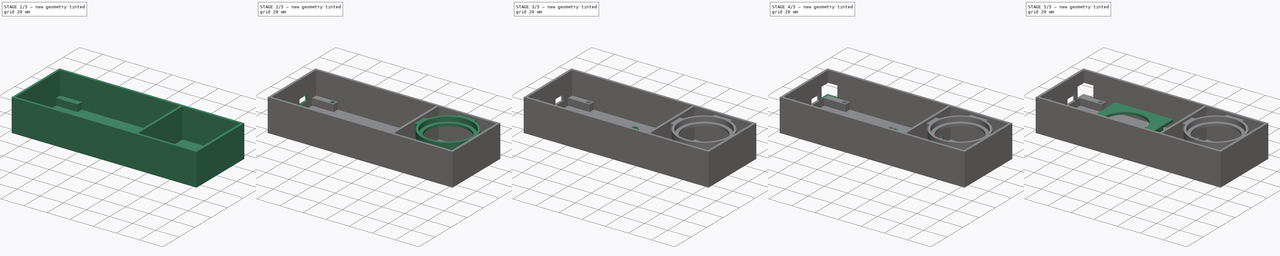
[diagram: build sequence overview — one tinted view per stage of 5, left to right]
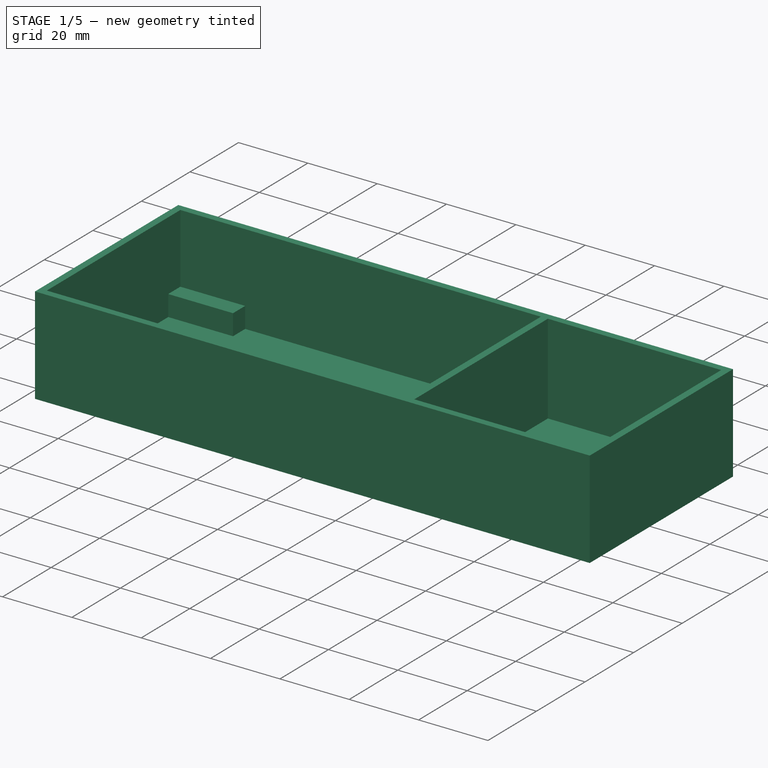
[diagram: stage 1 of 5 — iso view after this stage's code; geometry added in this stage tinted green]
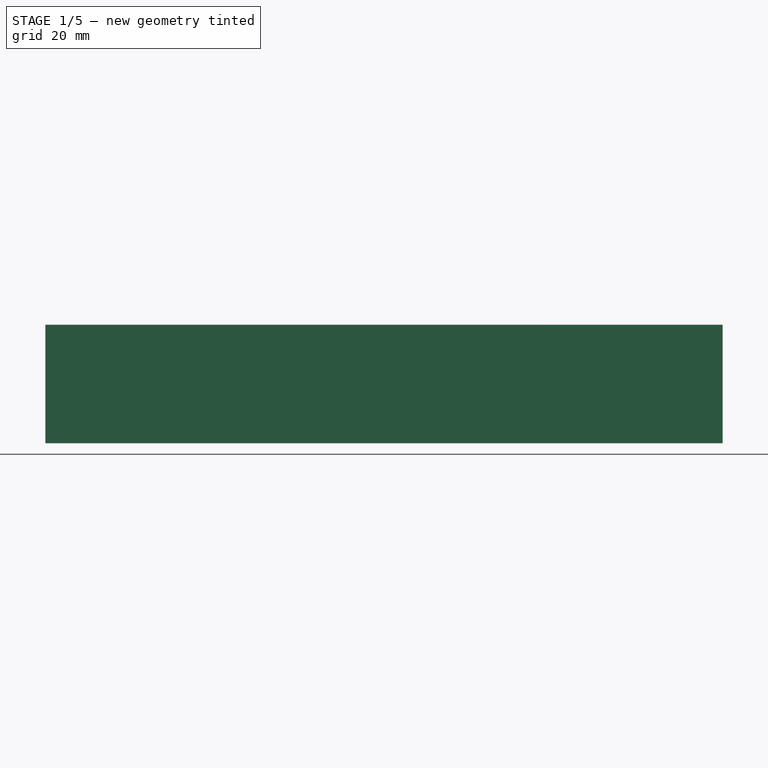
[diagram: stage 1 of 5 — front view after this stage's code; geometry added in this stage tinted green]
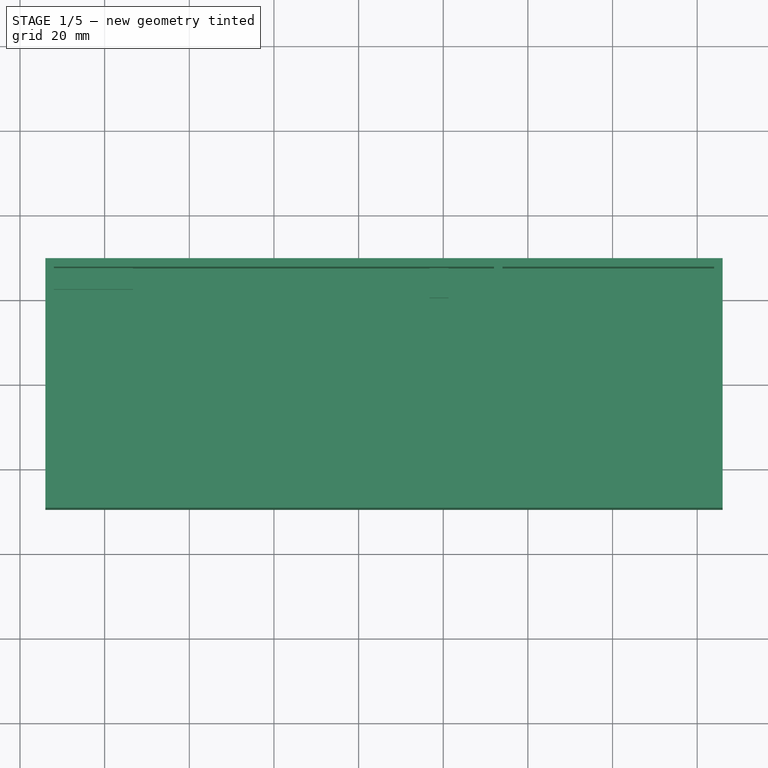
[diagram: stage 1 of 5 — top view after this stage's code; geometry added in this stage tinted green]
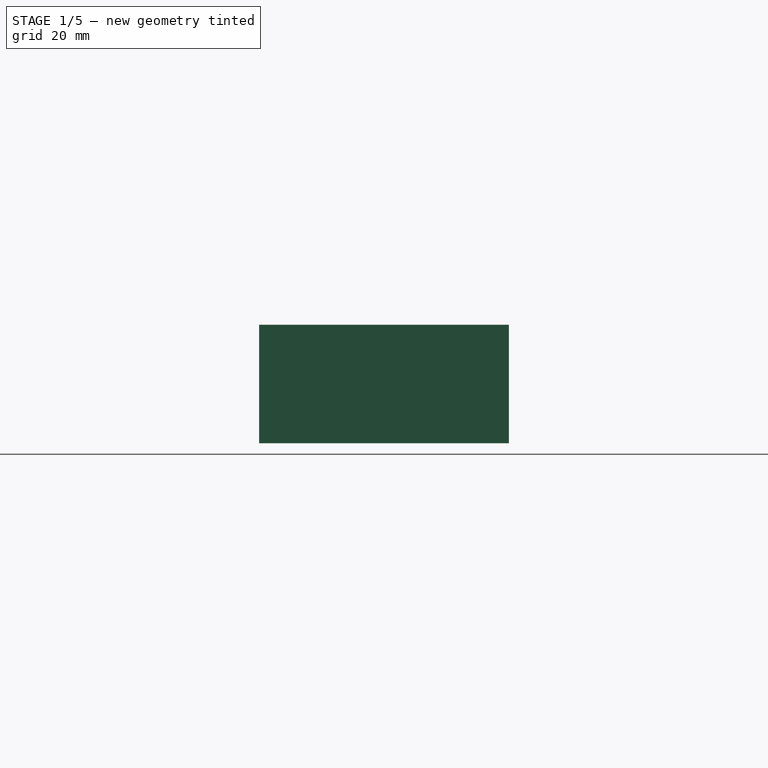
[diagram: stage 1 of 5 — right view after this stage's code; geometry added in this stage tinted green]
FCSTD DOCUMENT  (FreeCAD 0.19R24291 (Git))
Label: Holderv3
License: All rights reserved
LicenseURL: http://en.wikipedia.org/wiki/All_rights_reserved
objects: Sketcher::SketchObject×23, PartDesign::Pad×12, PartDesign::Pocket×11, PartDesign::Body×2, PartDesign::Plane×1, PartDesign::Line×1, PartDesign::Mirrored×1
note: 74 computed .brp shape members not serialized (recipe doc carries the construction recipe); baked Part::Feature solids carry a one-line shape summary decoded from their .brp

FEATURE [Sketcher::SketchObject] Sketch
  FullyConstrained = true
  MapMode = 5
  Support = -> [XY_Plane]
  sketch-geometry (8):
    g0: LineSegment StartX=-52 StartY=27.5 StartZ=0 EndX=52 EndY=27.5 EndZ=0
    g1: LineSegment StartX=52 StartY=27.5 StartZ=0 EndX=52 EndY=-27.5 EndZ=0
    g2: LineSegment StartX=52 StartY=-27.5 StartZ=0 EndX=-52 EndY=-27.5 EndZ=0
    g3: LineSegment StartX=-52 StartY=-27.5 StartZ=0 EndX=-52 EndY=27.5 EndZ=0
    g4: LineSegment StartX=-54 StartY=29.5 StartZ=0 EndX=54 EndY=29.5 EndZ=0
    g5: LineSegment StartX=54 StartY=29.5 StartZ=0 EndX=54 EndY=-29.5 EndZ=0
    g6: LineSegment StartX=54 StartY=-29.5 StartZ=0 EndX=-54 EndY=-29.5 EndZ=0
    g7: LineSegment StartX=-54 StartY=-29.5 StartZ=0 EndX=-54 EndY=29.5 EndZ=0
  constraints (22):
    c: Coincident(g0,g1)
    c: Coincident(g1,g2)
    c: Coincident(g2,g3)
    c: Coincident(g3,g0)
    c: Horizontal(g2)
    c: Vertical(g3)
    c: Symmetric(g0,g0,g-2)
    c: Symmetric(g1,g0,g-1)
    c: DistanceX(g0,g0) = 104
    c: DistanceY(g1,g1) = 55
    c: Coincident(g4,g5)
    c: Coincident(g5,g6)
    c: Coincident(g6,g7)
    c: Coincident(g7,g4)
    c: Horizontal(g4)
    c: Horizontal(g6)
    c: Vertical(g5)
    c: Vertical(g7)
    c: DistanceX(g0,g4) = 2
    c: DistanceX(g4,g0) = 2
    c: DistanceY(g0,g4) = 2
    c: DistanceY(g5,g1) = 2
FEATURE [PartDesign::Pad] Pad
  Direction = (1,1,1)
  Length = 20
  Length2 = 100
  Profile = -> Sketch
  Type = 0
FEATURE [Sketcher::SketchObject] Sketch001
  ExternalGeometry = -> [Pad]
  FullyConstrained = true
  MapMode = 5
  Placement = pos=(0,0,0) rot=(1,0,0;3.14159rad)
  Support = -> [Pad]
  sketch-geometry (18):
    g0: LineSegment StartX=43 StartY=27.5 StartZ=0 EndX=43 EndY=21.5 EndZ=0
    g1: LineSegment StartX=43 StartY=21.5 StartZ=0 EndX=52 EndY=21.5 EndZ=0
    g2: LineSegment StartX=36.75 StartY=-27.5 StartZ=0 EndX=36.75 EndY=-20.5 EndZ=0
    g3: LineSegment StartX=36.75 StartY=-20.5 StartZ=0 EndX=41.25 EndY=-20.5 EndZ=0
    g4: LineSegment StartX=41.25 StartY=-20.5 StartZ=0 EndX=41.25 EndY=-27.5 EndZ=0
    g5: LineSegment StartX=-47 StartY=27.5 StartZ=0 EndX=-47 EndY=22.5 EndZ=0
    g6: LineSegment StartX=-47 StartY=22.5 StartZ=0 EndX=-52 EndY=22.5 EndZ=0
    g7: LineSegment StartX=-52 StartY=-22.5 StartZ=0 EndX=-33.3 EndY=-22.5 EndZ=0
    g8: LineSegment StartX=-33.3 StartY=-22.5 StartZ=0 EndX=-33.3 EndY=-27.5 EndZ=0
    g9: LineSegment StartX=-54 StartY=29.5 StartZ=0 EndX=54 EndY=29.5 EndZ=0
    g10: LineSegment StartX=54 StartY=29.5 StartZ=0 EndX=54 EndY=-29.5 EndZ=0
    g11: LineSegment StartX=54 StartY=-29.5 StartZ=0 EndX=-54 EndY=-29.5 EndZ=0
    g12: LineSegment StartX=-54 StartY=-29.5 StartZ=0 EndX=-54 EndY=29.5 EndZ=0
    g13: LineSegment StartX=-47 StartY=27.5 StartZ=0 EndX=43 EndY=27.5 EndZ=0
    g14: LineSegment StartX=-52 StartY=22.5 StartZ=0 EndX=-52 EndY=-22.5 EndZ=0
    g15: LineSegment StartX=-33.3 StartY=-27.5 StartZ=0 EndX=36.75 EndY=-27.5 EndZ=0
    g16: LineSegment StartX=41.25 StartY=-27.5 StartZ=0 EndX=52 EndY=-27.5 EndZ=0
    g17: LineSegment StartX=52 StartY=-27.5 StartZ=0 EndX=52 EndY=21.5 EndZ=0
  constraints (51):
    c: Coincident(g0,g1)
    c: Horizontal(g1)
    c: Vertical(g0)
    c: DistanceX(g1,g1) = 9
    c: PointOnObject(g1,g-3)
    c: DistanceY(g0,g0) = 6
    c: PointOnObject(g0,g-4)
    c: PointOnObject(g2,g-5)
    c: Vertical(g2)
    c: Coincident(g2,g3)
    c: Horizontal(g3)
    c: Coincident(g3,g4)
    c: PointOnObject(g4,g-5)
    c: Vertical(g4)
    c: DistanceX(g3,g3) = 4.5
    c: DistanceX(g4,g-5) = 10.75
    c: DistanceY(g2,g2) = 7
    c: PointOnObject(g5,g-4)
    c: Vertical(g5)
    c: Coincident(g5,g6)
    c: PointOnObject(g6,g-6)
    c: Horizontal(g6)
    c: PointOnObject(g7,g-6)
    c: Horizontal(g7)
    c: Coincident(g7,g8)
    c: PointOnObject(g8,g-5)
    c: Vertical(g8)
    c: DistanceY(g5,g5) = 5
    c: DistanceX(g6,g6) = 5
    c: DistanceY(g8,g8) = 5
    c: DistanceX(g7,g7) = 18.7
    c: Coincident(g9,g10)
    c: Coincident(g10,g11)
    c: Coincident(g11,g12)
    c: Coincident(g12,g9)
    c: Horizontal(g9)
    c: Horizontal(g11)
    c: Vertical(g10)
    c: Vertical(g12)
    c: Coincident(g9,g-7)
    c: Coincident(g10,g-8)
    c: Coincident(g13,g5)
    c: Coincident(g13,g0)
    c: Coincident(g14,g6)
    c: Coincident(g14,g7)
    c: Coincident(g15,g8)
    c: Coincident(g15,g2)
    c: Coincident(g16,g4)
    c: Coincident(g16,g-5)
    c: Coincident(g17,g16)
    c: Coincident(g17,g1)
FEATURE [PartDesign::Pad] Pad001
  BaseFeature = -> Pad
  Direction = (1,1,1)
  Length = 6
  Length2 = 100
  Profile = -> Sketch001
  Type = 0
FEATURE [Sketcher::SketchObject] Sketch002
  ExternalGeometry = -> [Pad001]
  FullyConstrained = true
  MapMode = 5
  Placement = pos=(0,0,-6) rot=(1,0,0;3.14159rad)
  Support = -> [Pad001]
  sketch-geometry (4):
    g0: LineSegment StartX=-54 StartY=29.5 StartZ=0 EndX=54 EndY=29.5 EndZ=0
    g1: LineSegment StartX=54 StartY=29.5 StartZ=0 EndX=54 EndY=-29.5 EndZ=0
    g2: LineSegment StartX=54 StartY=-29.5 StartZ=0 EndX=-54 EndY=-29.5 EndZ=0
    g3: LineSegment StartX=-54 StartY=-29.5 StartZ=0 EndX=-54 EndY=29.5 EndZ=0
  constraints (10):
    c: Coincident(g0,g1)
    c: Coincident(g1,g2)
    c: Coincident(g2,g3)
    c: Coincident(g3,g0)
    c: Horizontal(g0)
    c: Horizontal(g2)
    c: Vertical(g1)
    c: Vertical(g3)
    c: Coincident(g0,g-3)
    c: Coincident(g1,g-4)
FEATURE [PartDesign::Pad] Pad002
  BaseFeature = -> Pad001
  Direction = (1,1,1)
  Length = 2
  Length2 = 100
  Profile = -> Sketch002
  Type = 0
FEATURE [Sketcher::SketchObject] Sketch004
  ExternalGeometry = -> [Pad002]
  FullyConstrained = true
  MapMode = 5
  Placement = pos=(54,0,0) rot=(0.57735,0.57735,0.57735;2.0944rad)
  Support = -> [Pad002]
  sketch-geometry (8):
    g0: LineSegment StartX=-29.5 StartY=20 StartZ=0 EndX=-27.5 EndY=20 EndZ=0
    g1: LineSegment StartX=-27.5 StartY=20 StartZ=0 EndX=-27.5 EndY=-6 EndZ=0
    g2: LineSegment StartX=-27.5 StartY=-6 StartZ=0 EndX=27.5 EndY=-6 EndZ=0
    g3: LineSegment StartX=29.5 StartY=20 StartZ=0 EndX=27.5 EndY=20 EndZ=0
    g4: LineSegment StartX=27.5 StartY=20 StartZ=0 EndX=27.5 EndY=-6 EndZ=0
    g5: LineSegment StartX=29.5 StartY=20 StartZ=0 EndX=29.5 EndY=-8 EndZ=0
    g6: LineSegment StartX=29.5 StartY=-8 StartZ=0 EndX=-29.5 EndY=-8 EndZ=0
    g7: LineSegment StartX=-29.5 StartY=-8 StartZ=0 EndX=-29.5 EndY=20 EndZ=0
  constraints (20):
    c: Coincident(g-3,g0)
    c: Horizontal(g0)
    c: Coincident(g0,g1)
    c: Vertical(g1)
    c: Coincident(g1,g2)
    c: Horizontal(g2)
    c: Coincident(g-5,g3)
    c: Horizontal(g3)
    c: Coincident(g3,g4)
    c: Coincident(g4,g2)
    c: Vertical(g4)
    c: Coincident(g3,g5)
    c: Coincident(g5,g-4)
    c: Coincident(g5,g6)
    c: Coincident(g6,g-4)
    c: Coincident(g6,g7)
    c: Coincident(g7,g0)
    c: DistanceX(g0,g0) = 2
    c: DistanceX(g3,g3) = 2
    c: DistanceY(g6,g1) = 2
FEATURE [PartDesign::Pad] Pad003
  BaseFeature = -> Pad002
  Direction = (1,1,1)
  Length = 50
  Length2 = 100
  Profile = -> Sketch004
  Type = 0
FEATURE [Sketcher::SketchObject] Sketch005
  ExternalGeometry = -> [Pad003]
  FullyConstrained = true
  MapMode = 5
  Placement = pos=(104,0,0) rot=(0.57735,0.57735,0.57735;2.0944rad)
  Support = -> [Pad003]
  sketch-geometry (4):
    g0: LineSegment StartX=-29.5 StartY=20 StartZ=0 EndX=29.5 EndY=20 EndZ=0
    g1: LineSegment StartX=29.5 StartY=20 StartZ=0 EndX=29.5 EndY=-8 EndZ=0
    g2: LineSegment StartX=29.5 StartY=-8 StartZ=0 EndX=-29.5 EndY=-8 EndZ=0
    g3: LineSegment StartX=-29.5 StartY=-8 StartZ=0 EndX=-29.5 EndY=20 EndZ=0
  constraints (10):
    c: Coincident(g0,g1)
    c: Coincident(g1,g2)
    c: Coincident(g2,g3)
    c: Coincident(g3,g0)
    c: Horizontal(g0)
    c: Horizontal(g2)
    c: Vertical(g1)
    c: Vertical(g3)
    c: Coincident(g0,g-3)
    c: Coincident(g1,g-4)
FEATURE [PartDesign::Pad] Pad004
  BaseFeature = -> Pad003
  Direction = (1,1,1)
  Length = 2
  Length2 = 100
  Profile = -> Sketch005
  Type = 0
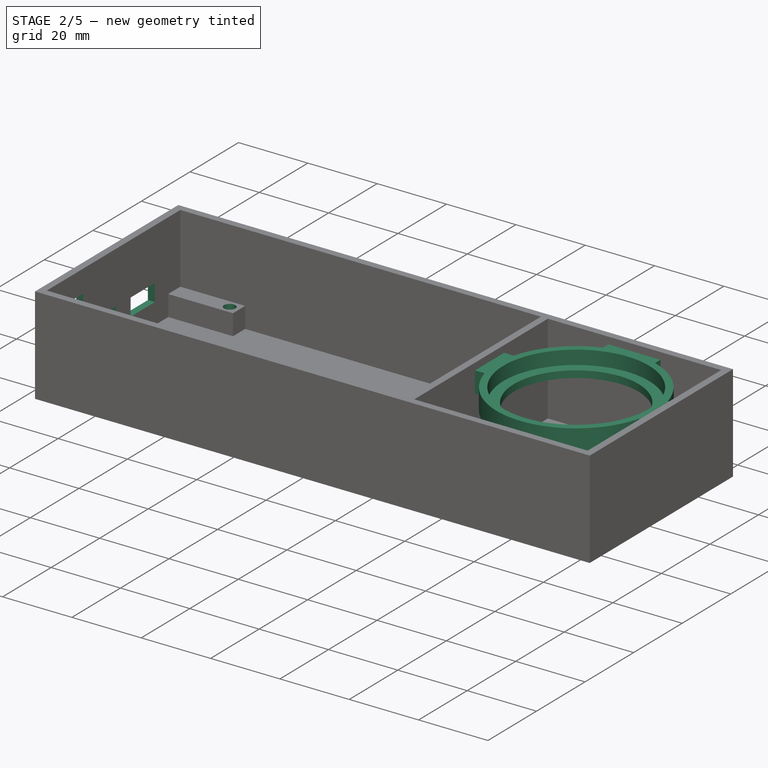
[diagram: stage 2 of 5 — iso view after this stage's code; geometry added in this stage tinted green]
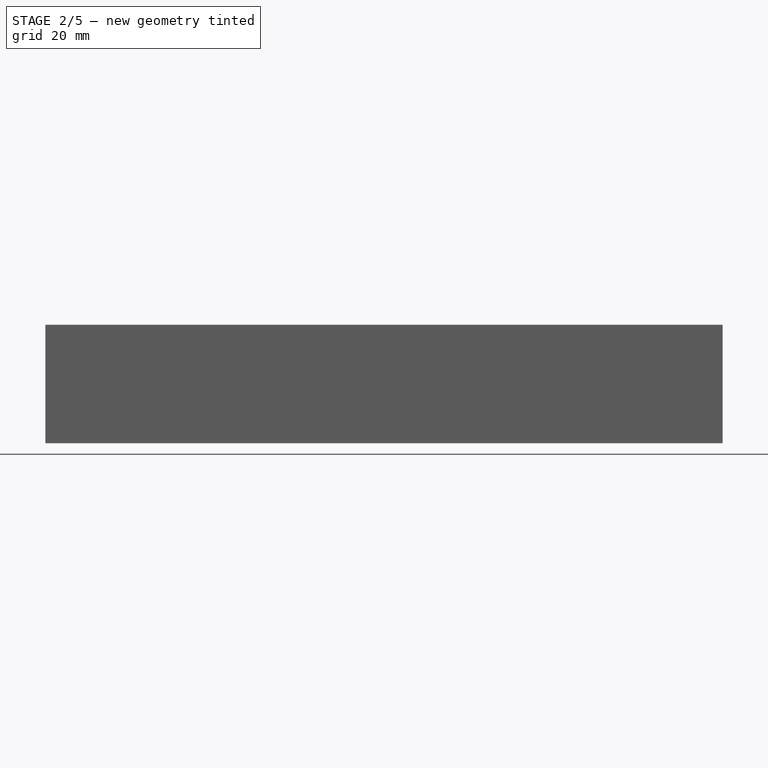
[diagram: stage 2 of 5 — front view after this stage's code; geometry added in this stage tinted green]
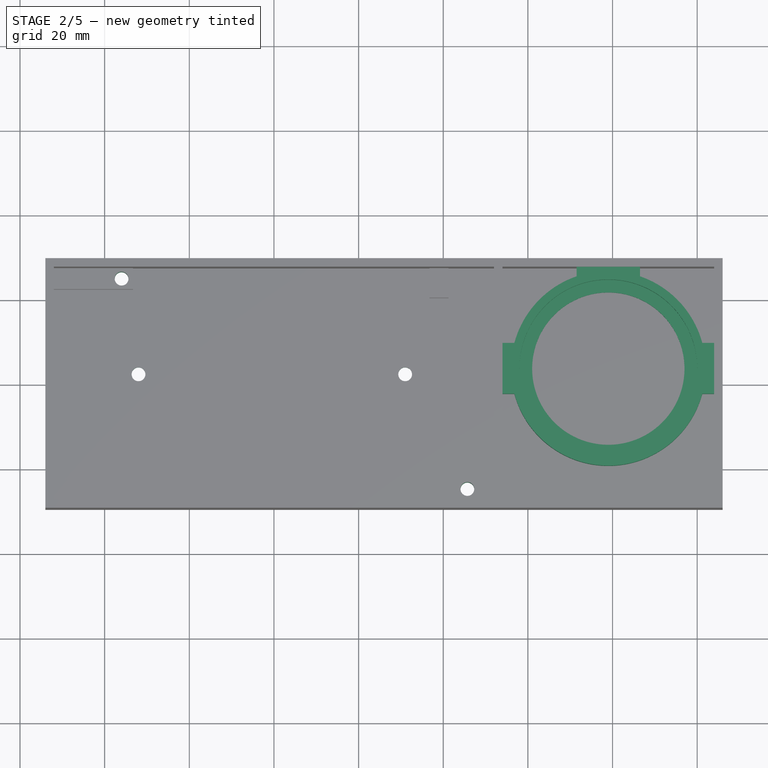
[diagram: stage 2 of 5 — top view after this stage's code; geometry added in this stage tinted green]
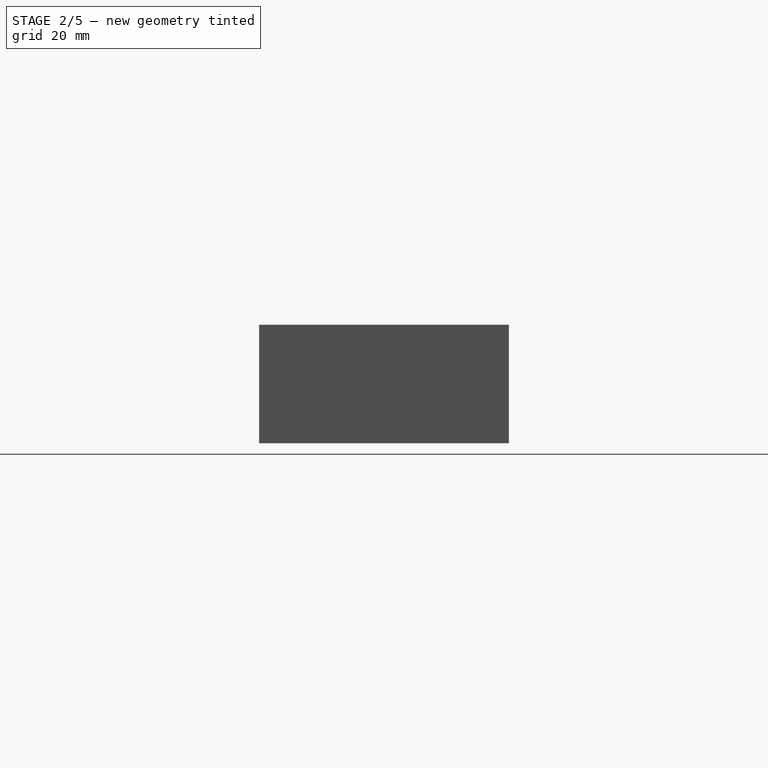
[diagram: stage 2 of 5 — right view after this stage's code; geometry added in this stage tinted green]
FEATURE [PartDesign::Plane] DatumPlane
  AttachmentOffset = pos=(0,0,18) rot=(0,0,1;0rad)
  Length = 179.432
  MapMode = 5
  Placement = pos=(0,0,12) rot=(0,0,1;0rad)
  ResizeMode = 0
  Support = -> [Pad004]
  Width = 78.4319
FEATURE [Sketcher::SketchObject] Sketch010
  ExternalGeometry = -> [Pad004]
  FullyConstrained = true
  MapMode = 5
  Placement = pos=(0,0,12) rot=(0,0,1;0rad)
  Support = -> [DatumPlane]
  sketch-geometry (18):
    g0: LineSegment StartX=79 StartY=27.5 StartZ=0 EndX=79 EndY=3.5 EndZ=0
    g1: ArcOfCircle CenterX=79 CenterY=3.5 CenterZ=0 NormalX=0 NormalY=0 NormalZ=1 AngleXU=0 Radius=23 StartAngle=3.40552 EndAngle=6.01926
    g2: Circle CenterX=79 CenterY=3.5 CenterZ=0 NormalX=0 NormalY=0 NormalZ=1 AngleXU=0 Radius=18
    g3: LineSegment StartX=56.7964 StartY=9.5 StartZ=0 EndX=54 EndY=9.5 EndZ=0
    g4: LineSegment StartX=54 StartY=9.5 StartZ=0 EndX=54 EndY=-2.5 EndZ=0
    g5: LineSegment StartX=54 StartY=-2.5 StartZ=0 EndX=56.7964 EndY=-2.5 EndZ=0
    g6: LineSegment StartX=79 StartY=3.5 StartZ=0 EndX=54 EndY=3.5 EndZ=0
    g7: LineSegment StartX=71.5 StartY=25.2428 StartZ=0 EndX=71.5 EndY=27.5 EndZ=0
    g8: LineSegment StartX=71.5 StartY=27.5 StartZ=0 EndX=86.5 EndY=27.5 EndZ=0
    g9: LineSegment StartX=86.5 StartY=27.5 StartZ=0 EndX=86.5 EndY=25.2428 EndZ=0
    g10: ArcOfCircle CenterX=79 CenterY=3.5 CenterZ=0 NormalX=0 NormalY=0 NormalZ=1 AngleXU=0 Radius=23 StartAngle=1.90296 EndAngle=2.87767
    g11: LineSegment StartX=79 StartY=3.5 StartZ=0 EndX=104 EndY=3.5 EndZ=0
    g12: LineSegment StartX=101.204 StartY=9.5 StartZ=0 EndX=104 EndY=9.5 EndZ=0
    g13: LineSegment StartX=104 StartY=9.5 StartZ=0 EndX=104 EndY=-2.5 EndZ=0
    g14: LineSegment StartX=104 StartY=-2.5 StartZ=0 EndX=101.204 EndY=-2.5 EndZ=0
    g15: ArcOfCircle CenterX=79 CenterY=3.5 CenterZ=0 NormalX=0 NormalY=0 NormalZ=1 AngleXU=0 Radius=23 StartAngle=0.263923 EndAngle=1.23864
    g16: LineSegment StartX=56.7964 StartY=9.5 StartZ=0 EndX=56.7964 EndY=-2.5 EndZ=0
    g17: LineSegment StartX=101.204 StartY=9.5 StartZ=0 EndX=101.204 EndY=-2.5 EndZ=0
  constraints (49):
    c: PointOnObject(g0,g-6)
    c: Symmetric(g-6,g-6,g0)
    c: Distance(g0) = 24
    c: Coincident(g1,g0)
    c: Diameter(g1) = 46
    c: Coincident(g2,g1)
    c: Diameter(g2) = 36
    c: PointOnObject(g3,g-5)
    c: Horizontal(g3)
    c: Coincident(g3,g4)
    c: PointOnObject(g4,g-5)
    c: Coincident(g4,g5)
    c: Horizontal(g5)
    c: Coincident(g6,g1)
    c: PointOnObject(g6,g4)
    c: Symmetric(g3,g4,g6)
    c: Coincident(g10,g3)
    c: Coincident(g1,g5)
    c: PointOnObject(g7,g1)
    c: PointOnObject(g7,g-6)
    c: Vertical(g7)
    c: Coincident(g7,g8)
    c: Coincident(g8,g9)
    c: Vertical(g9)
    c: Symmetric(g8,g7,g0)
    c: Equal(g1,g10)
    c: Coincident(g15,g9)
    c: Coincident(g1,g10)
    c: PointOnObject(g10,g7)
    c: DistanceX(g7,g15) = 15
    c: Coincident(g11,g1)
    c: PointOnObject(g11,g-4)
    c: Horizontal(g11)
    c: PointOnObject(g12,g-4)
    c: Horizontal(g12)
    c: Coincident(g12,g13)
    c: Coincident(g13,g14)
    c: Horizontal(g14)
    c: Equal(g1,g15)
    c: Coincident(g15,g12)
    c: Coincident(g1,g15)
    c: Coincident(g1,g14)
    c: Symmetric(g12,g13,g11)
    c: Coincident(g16,g3)
    c: Coincident(g16,g1)
    c: Coincident(g17,g12)
    c: Coincident(g17,g1)
    c: Equal(g17,g16)
    c: DistanceY(g1,g12) = 12
FEATURE [PartDesign::Pad] Pad005
  BaseFeature = -> Pad004
  Direction = (1,1,1)
  Length = 2
  Length2 = 100
  Profile = -> Sketch010
  Type = 0
FEATURE [Sketcher::SketchObject] Sketch011
  ExternalGeometry = -> [Pad005]
  FullyConstrained = true
  MapMode = 5
  Placement = pos=(0,0,14) rot=(0,0,1;0rad)
  Support = -> [Pad005]
  sketch-geometry (13):
    g0: LineSegment StartX=71.5 StartY=25.2428 StartZ=0 EndX=71.5 EndY=27.5 EndZ=0
    g1: LineSegment StartX=71.5 StartY=27.5 StartZ=0 EndX=86.5 EndY=27.5 EndZ=0
    g2: LineSegment StartX=86.5 StartY=27.5 StartZ=0 EndX=86.5 EndY=25.2428 EndZ=0
    g3: LineSegment StartX=56.7964 StartY=9.5 StartZ=0 EndX=54 EndY=9.5 EndZ=0
    g4: LineSegment StartX=54 StartY=9.5 StartZ=0 EndX=54 EndY=-2.5 EndZ=0
    g5: LineSegment StartX=54 StartY=-2.5 StartZ=0 EndX=56.7964 EndY=-2.5 EndZ=0
    g6: LineSegment StartX=101.204 StartY=9.5 StartZ=0 EndX=104 EndY=9.5 EndZ=0
    g7: LineSegment StartX=104 StartY=9.5 StartZ=0 EndX=104 EndY=-2.5 EndZ=0
    g8: LineSegment StartX=104 StartY=-2.5 StartZ=0 EndX=101.204 EndY=-2.5 EndZ=0
    g9: ArcOfCircle CenterX=79 CenterY=3.5 CenterZ=0 NormalX=0 NormalY=0 NormalZ=1 AngleXU=0 Radius=23 StartAngle=0.263923 EndAngle=1.23864
    g10: ArcOfCircle CenterX=79 CenterY=3.5 CenterZ=0 NormalX=0 NormalY=0 NormalZ=1 AngleXU=0 Radius=23 StartAngle=3.40552 EndAngle=6.01926
    g11: ArcOfCircle CenterX=79 CenterY=3.5 CenterZ=0 NormalX=0 NormalY=0 NormalZ=1 AngleXU=0 Radius=23 StartAngle=1.90296 EndAngle=2.87767
    g12: Circle CenterX=79 CenterY=3.5 CenterZ=0 NormalX=0 NormalY=0 NormalZ=1 AngleXU=0 Radius=21
  constraints (29):
    c: Coincident(g-9,g0)
    c: Coincident(g0,g-9)
    c: Coincident(g0,g1)
    c: Coincident(g1,g-8)
    c: Coincident(g1,g2)
    c: Coincident(g2,g-8)
    c: Coincident(g-10,g3)
    c: Coincident(g3,g-10)
    c: Coincident(g3,g4)
    c: Coincident(g4,g-11)
    c: Coincident(g4,g5)
    c: Coincident(g5,g-11)
    c: Coincident(g-6,g6)
    c: Coincident(g6,g-6)
    c: Coincident(g6,g7)
    c: Coincident(g7,g-7)
    c: Coincident(g7,g8)
    c: Coincident(g8,g-7)
    c: Coincident(g9,g-12)
    c: Coincident(g9,g2)
    c: Coincident(g9,g6)
    c: Coincident(g10,g9)
    c: Coincident(g10,g8)
    c: Coincident(g10,g5)
    c: Coincident(g11,g9)
    c: Coincident(g11,g3)
    c: Coincident(g11,g0)
    c: Coincident(g12,g9)
    c: Diameter(g12) = 42
FEATURE [PartDesign::Pad] Pad006
  BaseFeature = -> Pad005
  Direction = (1,1,1)
  Length = 4
  Length2 = 100
  Profile = -> Sketch011
  Type = 0
FEATURE [PartDesign::Body] Body001  label="Speaker cover"
  Group = -> [Sketch017,Pad008,Sketch018,Pad009,Mirrored,Sketch019,Pocket006]
  Origin = -> Origin001
  Tip = -> Pocket006
FEATURE [PartDesign::Pocket] Pocket007
  BaseFeature = -> Pad006
  Length = 0
  Length2 = 100
  Profile = -> Sketch014
  Type = 3
  UpToFace = -> Pad006 [Face23]
FEATURE [Sketcher::SketchObject] Sketch022
  ExternalGeometry = -> [Pad006]
  FullyConstrained = true
  MapMode = 5
  Placement = pos=(-54,0,0) rot=(0.57735,-0.57735,-0.57735;2.0944rad)
  Support = -> [Pad006]
  sketch-geometry (12):
    g0: LineSegment StartX=12.5 StartY=13.5 StartZ=0 EndX=23.5 EndY=13.5 EndZ=0
    g1: LineSegment StartX=23.5 StartY=13.5 StartZ=0 EndX=23.5 EndY=0 EndZ=0
    g2: LineSegment StartX=23.5 StartY=0 StartZ=0 EndX=12.5 EndY=0 EndZ=0
    g3: LineSegment StartX=12.5 StartY=0 StartZ=0 EndX=12.5 EndY=13.5 EndZ=0
    g4: LineSegment StartX=-17 StartY=5 StartZ=0 EndX=-7 EndY=5 EndZ=0
    g5: LineSegment StartX=-7 StartY=5 StartZ=0 EndX=-7 EndY=0 EndZ=0
    g6: LineSegment StartX=-7 StartY=0 StartZ=0 EndX=-17 EndY=0 EndZ=0
    g7: LineSegment StartX=-17 StartY=0 StartZ=0 EndX=-17 EndY=5 EndZ=0
    g8: LineSegment StartX=-1 StartY=5 StartZ=0 EndX=9 EndY=5 EndZ=0
    g9: LineSegment StartX=9 StartY=5 StartZ=0 EndX=9 EndY=0 EndZ=0
    g10: LineSegment StartX=9 StartY=0 StartZ=0 EndX=-1 EndY=0 EndZ=0
    g11: LineSegment StartX=-1 StartY=0 StartZ=0 EndX=-1 EndY=5 EndZ=0
  constraints (36):
    c: Coincident(g0,g1)
    c: Coincident(g1,g2)
    c: Coincident(g2,g3)
    c: Coincident(g3,g0)
    c: Horizontal(g0)
    c: Horizontal(g2)
    c: Vertical(g1)
    c: Vertical(g3)
    c: Coincident(g4,g5)
    c: Coincident(g5,g6)
    c: Coincident(g6,g7)
    c: Coincident(g7,g4)
    c: Horizontal(g4)
    c: Horizontal(g6)
    c: Vertical(g5)
    c: Vertical(g7)
    c: Coincident(g8,g9)
    c: Coincident(g9,g10)
    c: Coincident(g10,g11)
    c: Coincident(g11,g8)
    c: Horizontal(g8)
    c: Horizontal(g10)
    c: Vertical(g9)
    c: Vertical(g11)
    c: Horizontal(g5,g10)
    c: Horizontal(g9,g2)
    c: Horizontal(g1,g-4)
    c: Equal(g5,g11)
    c: DistanceX(g-3,g4) = 22.5
    c: Equal(g4,g8)
    c: DistanceX(g4,g4) = 10
    c: DistanceX(g4,g8) = 26
    c: DistanceY(g7,g7) = 5
    c: DistanceX(g0,g0) = 11
    c: DistanceX(g0,g-4) = 6
    c: DistanceY(g3,g3) = 13.5
FEATURE [Sketcher::SketchObject] Sketch023
  ExternalGeometry = -> [Pocket007]
  FullyConstrained = true
  MapMode = 5
  Placement = pos=(0,0,-6) rot=(0,0,1;0rad)
  Support = -> [Pocket007]
  sketch-geometry (2):
    g0: Circle CenterX=-32 CenterY=2.5 CenterZ=0 NormalX=0 NormalY=0 NormalZ=1 AngleXU=0 Radius=1.625
    g1: Circle CenterX=31 CenterY=2.5 CenterZ=0 NormalX=0 NormalY=0 NormalZ=1 AngleXU=0 Radius=1.625
  constraints (6):
    c: Equal(g0,g1)
    c: Horizontal(g0,g1)
    c: DistanceX(g0,g1) = 63
    c: DistanceY(g1,g-3) = 25
    c: DistanceX(g1,g-3) = 21
    c: Diameter(g1) = 3.25
FEATURE [PartDesign::Pocket] Pocket
  BaseFeature = -> Pocket007
  Length = 0
  Length2 = 100
  Profile = -> Sketch022
  Type = 3
  UpToFace = -> Pocket007 [Face14]
FEATURE [PartDesign::Pocket] Pocket008
  BaseFeature = -> Pocket
  Length = 0
  Length2 = 100
  Profile = -> Sketch023
  Type = 3
  UpToFace = -> Pocket [Face35]
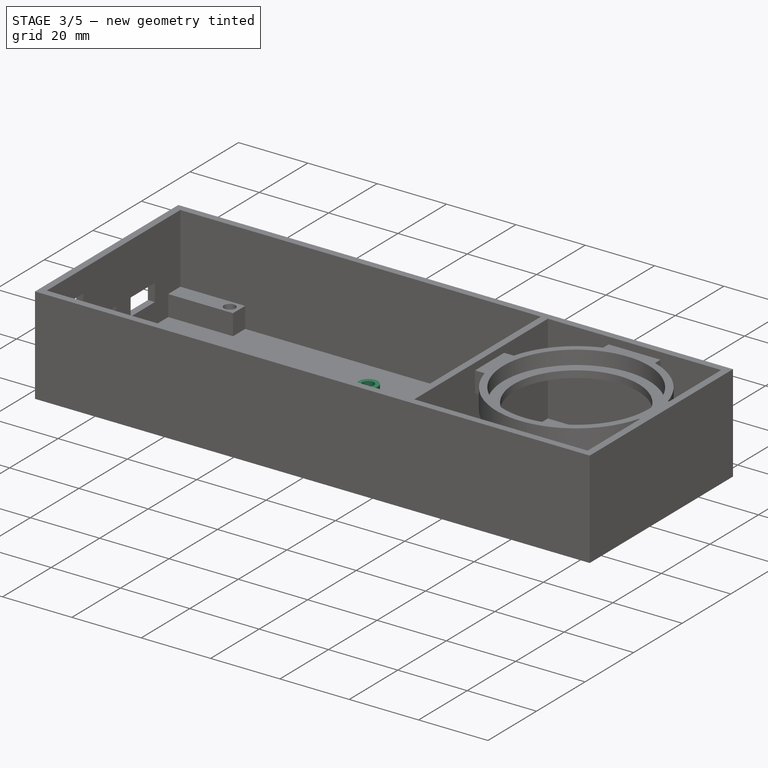
[diagram: stage 3 of 5 — iso view after this stage's code; geometry added in this stage tinted green]
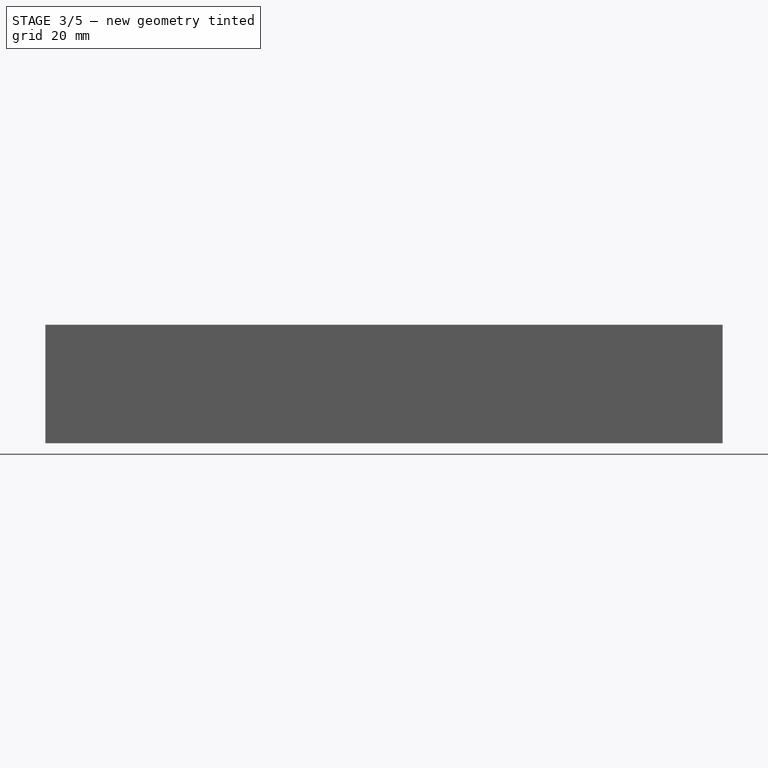
[diagram: stage 3 of 5 — front view after this stage's code; geometry added in this stage tinted green]
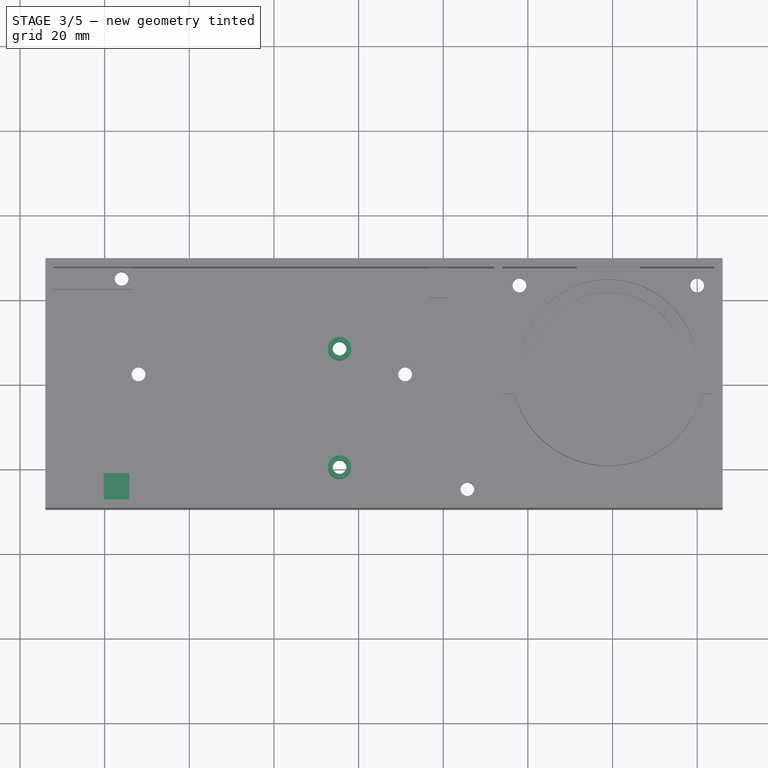
[diagram: stage 3 of 5 — top view after this stage's code; geometry added in this stage tinted green]
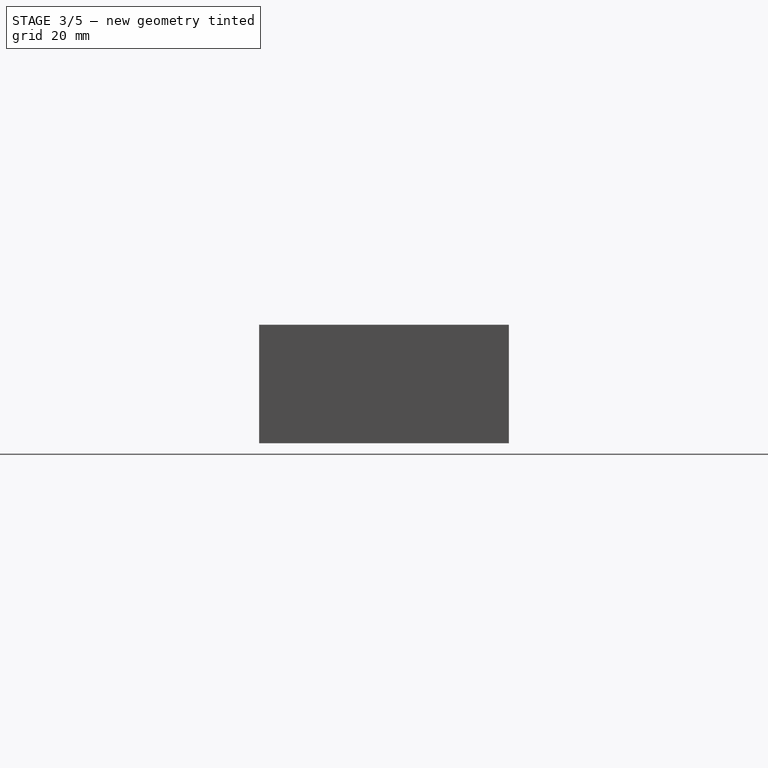
[diagram: stage 3 of 5 — right view after this stage's code; geometry added in this stage tinted green]
FEATURE [Sketcher::SketchObject] Sketch024
  ExternalGeometry = -> [Pocket008]
  FullyConstrained = true
  MapMode = 5
  Placement = pos=(0,0,-6) rot=(0,0,1;0rad)
  Support = -> [Pocket008]
  sketch-geometry (2):
    g0: Circle CenterX=15.5 CenterY=8.5 CenterZ=0 NormalX=0 NormalY=0 NormalZ=1 AngleXU=0 Radius=2.75
    g1: Circle CenterX=15.5 CenterY=-19.5 CenterZ=0 NormalX=0 NormalY=0 NormalZ=1 AngleXU=0 Radius=2.75
  constraints (6):
    c: Vertical(g1,g0)
    c: Equal(g0,g1)
    c: DistanceX(g0,g-3) = 36.5
    c: DistanceY(g1,g0) = 28
    c: DistanceY(g0,g-3) = 19
    c: Diameter(g0) = 5.5
FEATURE [PartDesign::Pad] Pad010
  BaseFeature = -> Pocket008
  Direction = (1,1,1)
  Length = 10
  Length2 = 100
  Profile = -> Sketch024
  Type = 3
  UpToFace = -> Pocket008 [Face49]
FEATURE [Sketcher::SketchObject] Sketch025
  ExternalGeometry = -> [Pad010]
  FullyConstrained = true
  MapMode = 5
  Support = -> [Pad010]
  sketch-geometry (2):
    g0: Circle CenterX=15.5 CenterY=8.5 CenterZ=0 NormalX=0 NormalY=0 NormalZ=1 AngleXU=0 Radius=1.625
    g1: Circle CenterX=15.5 CenterY=-19.5 CenterZ=0 NormalX=0 NormalY=0 NormalZ=1 AngleXU=0 Radius=1.625
  constraints (4):
    c: Coincident(g0,g-3)
    c: Coincident(g1,g-4)
    c: Equal(g0,g1)
    c: Diameter(g0) = 3.25
FEATURE [PartDesign::Pocket] Pocket009
  BaseFeature = -> Pad010
  Length = 0
  Length2 = 100
  Profile = -> Sketch025
  Type = 3
  UpToFace = -> Pad010 [Face35]
FEATURE [Sketcher::SketchObject] Sketch026
  ExternalGeometry = -> [Pocket009]
  FullyConstrained = true
  MapMode = 5
  Placement = pos=(0,0,-6) rot=(0,0,1;0rad)
  Support = -> [Pocket009]
  sketch-geometry (2):
    g0: Circle CenterX=100 CenterY=23.5 CenterZ=0 NormalX=0 NormalY=0 NormalZ=1 AngleXU=0 Radius=1.625
    g1: Circle CenterX=58 CenterY=23.5 CenterZ=0 NormalX=0 NormalY=0 NormalZ=1 AngleXU=0 Radius=1.625
  constraints (6):
    c: Equal(g1,g0)
    c: Diameter(g1) = 3.25
    c: Horizontal(g1,g0)
    c: DistanceY(g0,g-3) = 4
    c: DistanceX(g0,g-3) = 4
    c: DistanceX(g-4,g1) = 4
FEATURE [PartDesign::Pocket] Pocket010
  BaseFeature = -> Pocket009
  Length = 0
  Length2 = 100
  Profile = -> Sketch026
  Type = 3
  UpToFace = -> Pocket009 [Face18]
FEATURE [Sketcher::SketchObject] Sketch027
  ExternalGeometry = -> [Pocket010]
  FullyConstrained = true
  MapMode = 5
  Placement = pos=(0,0,-6) rot=(0,0,1;0rad)
  Support = -> [Pocket010]
  sketch-geometry (4):
    g0: LineSegment StartX=-40.2 StartY=-27.5 StartZ=0 EndX=-34.2 EndY=-27.5 EndZ=0
    g1: LineSegment StartX=-34.2 StartY=-27.5 StartZ=0 EndX=-34.2 EndY=-21 EndZ=0
    g2: LineSegment StartX=-34.2 StartY=-21 StartZ=0 EndX=-40.2 EndY=-21 EndZ=0
    g3: LineSegment StartX=-40.2 StartY=-21 StartZ=0 EndX=-40.2 EndY=-27.5 EndZ=0
  constraints (12):
    c: Coincident(g0,g1)
    c: Coincident(g1,g2)
    c: Coincident(g2,g3)
    c: Coincident(g3,g0)
    c: Horizontal(g0)
    c: Horizontal(g2)
    c: Vertical(g1)
    c: Vertical(g3)
    c: PointOnObject(g0,g-4)
    c: DistanceX(g-3,g1) = 17.8
    c: DistanceX(g-3,g2) = 11.8
    c: DistanceY(g1,g1) = 6.5
FEATURE [PartDesign::Pad] Pad011
  BaseFeature = -> Pocket010
  Direction = (1,1,1)
  Length = 10
  Length2 = 100
  Profile = -> Sketch027
  Type = 3
  UpToFace = -> Pocket010 [Face50]
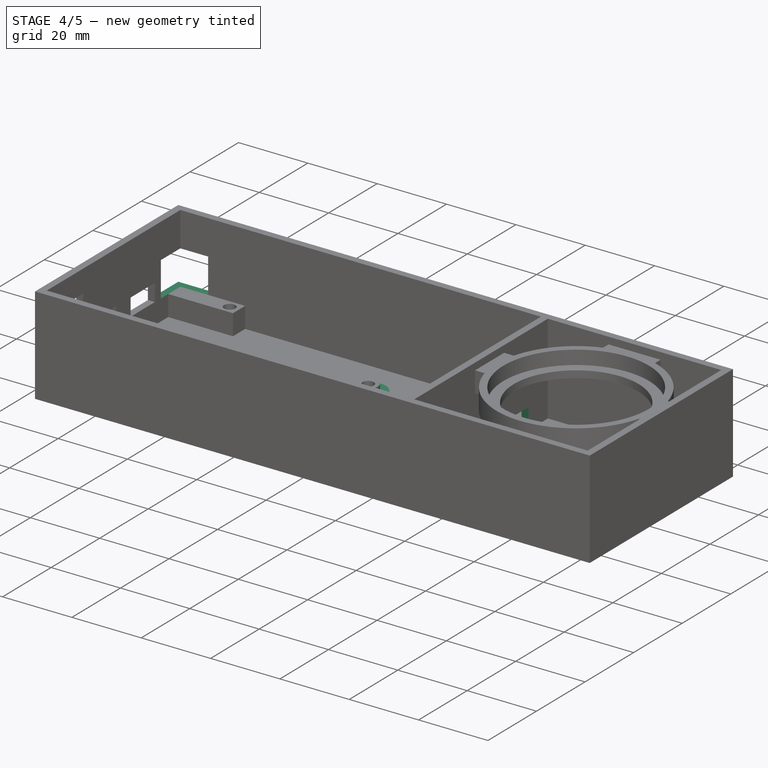
[diagram: stage 4 of 5 — iso view after this stage's code; geometry added in this stage tinted green]
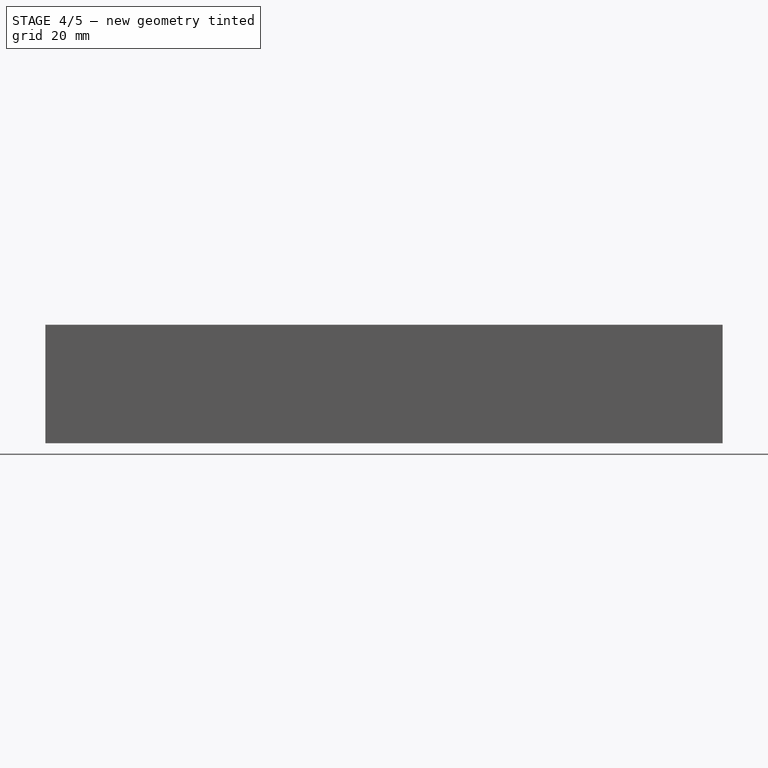
[diagram: stage 4 of 5 — front view after this stage's code; geometry added in this stage tinted green]
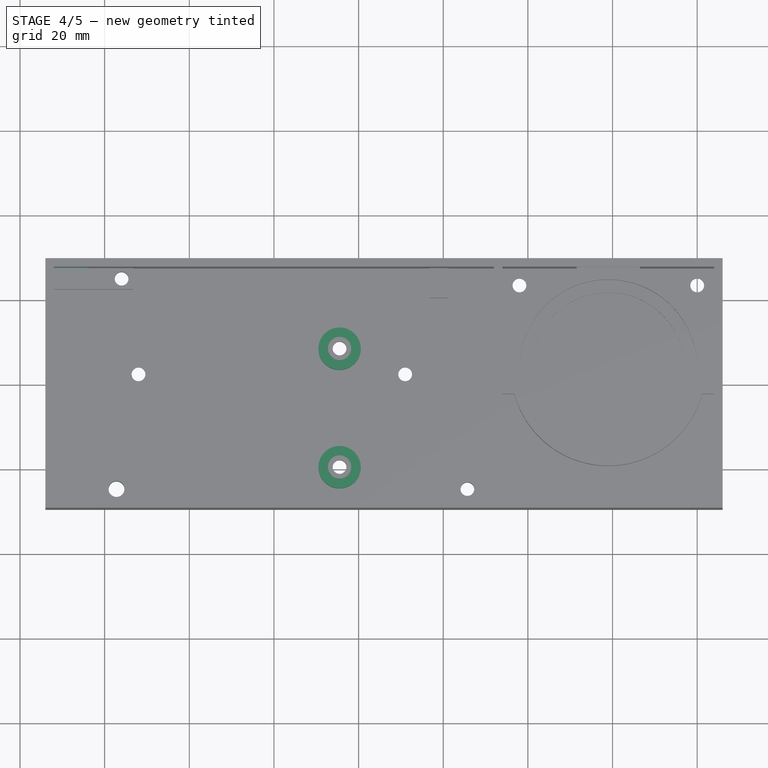
[diagram: stage 4 of 5 — top view after this stage's code; geometry added in this stage tinted green]
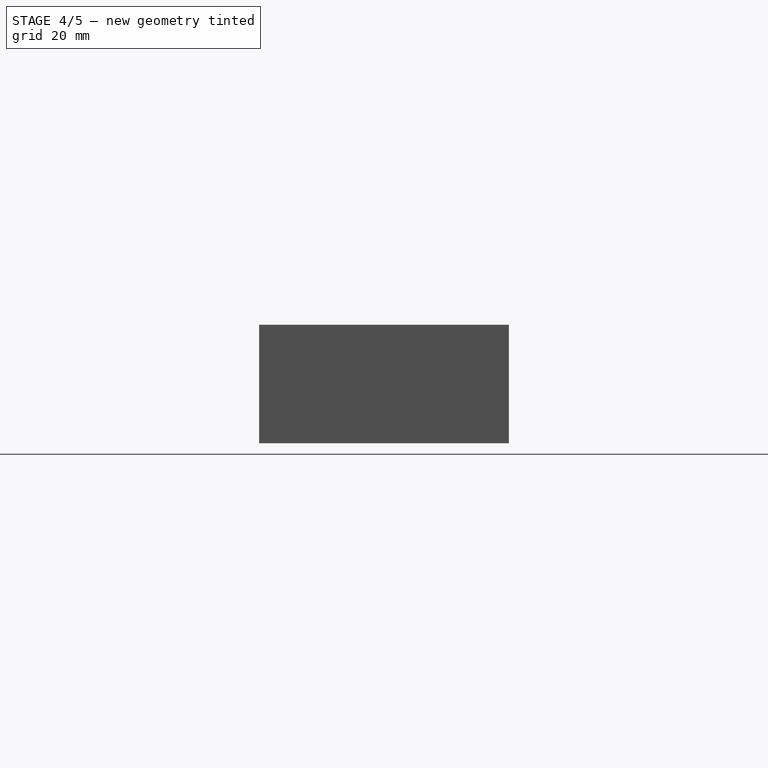
[diagram: stage 4 of 5 — right view after this stage's code; geometry added in this stage tinted green]
FEATURE [Sketcher::SketchObject] Sketch028
  ExternalGeometry = -> [Pad011]
  FullyConstrained = true
  MapMode = 5
  Support = -> [Pad011]
  sketch-geometry (1):
    g0: Circle CenterX=-37.2 CenterY=-24.7 CenterZ=0 NormalX=0 NormalY=0 NormalZ=1 AngleXU=0 Radius=1.875
  constraints (3):
    c: Diameter(g0) = 3.75
    c: DistanceX(g-4,g0) = 14.8
    c: Horizontal(g-5,g0)
FEATURE [PartDesign::Pocket] Pocket011
  BaseFeature = -> Pad011
  Length = 0
  Length2 = 100
  Profile = -> Sketch028
  Type = 3
  UpToFace = -> Pad011 [Face35]
FEATURE [Sketcher::SketchObject] Sketch029
  ExternalGeometry = -> [Pocket011]
  FullyConstrained = true
  MapMode = 5
  Placement = pos=(-54,0,0) rot=(0.57735,-0.57735,-0.57735;2.0944rad)
  Support = -> [Pocket011]
  sketch-geometry (4):
    g0: LineSegment StartX=-29.5 StartY=10 StartZ=0 EndX=-19.5 EndY=10 EndZ=0
    g1: LineSegment StartX=-19.5 StartY=10 StartZ=0 EndX=-19.5 EndY=0 EndZ=0
    g2: LineSegment StartX=-19.5 StartY=0 StartZ=0 EndX=-29.5 EndY=0 EndZ=0
    g3: LineSegment StartX=-29.5 StartY=0 StartZ=0 EndX=-29.5 EndY=10 EndZ=0
  constraints (12):
    c: Coincident(g0,g1)
    c: Coincident(g1,g2)
    c: Coincident(g2,g3)
    c: Coincident(g3,g0)
    c: Horizontal(g0)
    c: Horizontal(g2)
    c: Vertical(g1)
    c: Vertical(g3)
    c: PointOnObject(g1,g-1)
    c: DistanceX(g-3,g0) = 10
    c: DistanceX(g-3,g0) = 0
    c: DistanceY(g1,g0) = 10
FEATURE [PartDesign::Pocket] Pocket012
  BaseFeature = -> Pocket011
  Length = 10
  Length2 = 100
  Profile = -> Sketch029
  Type = 0
FEATURE [Sketcher::SketchObject] Sketch030
  ExternalGeometry = -> [Pocket012]
  FullyConstrained = true
  MapMode = 5
  Placement = pos=(52,0,0) rot=(0.57735,-0.57735,-0.57735;2.0944rad)
  Support = -> [Pocket012]
  sketch-geometry (4):
    g0: LineSegment StartX=-19.5 StartY=0 StartZ=0 EndX=16.5 EndY=0 EndZ=0
    g1: LineSegment StartX=16.5 StartY=0 StartZ=0 EndX=16.5 EndY=-6 EndZ=0
    g2: LineSegment StartX=16.5 StartY=-6 StartZ=0 EndX=-19.5 EndY=-6 EndZ=0
    g3: LineSegment StartX=-19.5 StartY=-6 StartZ=0 EndX=-19.5 EndY=0 EndZ=0
  constraints (12):
    c: Coincident(g0,g1)
    c: Coincident(g1,g2)
    c: Coincident(g2,g3)
    c: Coincident(g3,g0)
    c: Horizontal(g0)
    c: Horizontal(g2)
    c: Vertical(g1)
    c: Vertical(g3)
    c: PointOnObject(g1,g-3)
    c: DistanceX(g0,g0) = 36
    c: DistanceY(g3,g3) = 6
    c: DistanceX(g-4,g0) = 8
FEATURE [PartDesign::Pocket] Pocket013
  BaseFeature = -> Pocket012
  Length = 0
  Length2 = 100
  Profile = -> Sketch030
  Type = 3
  UpToFace = -> Pocket012 [Face48]
FEATURE [Sketcher::SketchObject] Sketch031
  ExternalGeometry = -> [Pocket013]
  FullyConstrained = true
  MapMode = 5
  Placement = pos=(0,0,-6) rot=(0,0,1;0rad)
  Support = -> [Pocket013]
  sketch-geometry (4):
    g0: Circle CenterX=15.5 CenterY=8.5 CenterZ=0 NormalX=0 NormalY=0 NormalZ=1 AngleXU=0 Radius=5
    g1: Circle CenterX=15.5 CenterY=-19.5 CenterZ=0 NormalX=0 NormalY=0 NormalZ=1 AngleXU=0 Radius=5
    g2: Circle CenterX=15.5 CenterY=-19.5 CenterZ=0 NormalX=0 NormalY=0 NormalZ=1 AngleXU=0 Radius=1.625
    g3: Circle CenterX=15.5 CenterY=8.5 CenterZ=0 NormalX=0 NormalY=0 NormalZ=1 AngleXU=0 Radius=1.625
  constraints (8):
    c: Coincident(g0,g-3)
    c: Coincident(g1,g-4)
    c: Equal(g0,g1)
    c: Diameter(g0) = 10
    c: Coincident(g2,g1)
    c: Equal(g-4,g2)
    c: Coincident(g3,g0)
    c: Equal(g3,g-3)
FEATURE [PartDesign::Pad] Pad012
  BaseFeature = -> Pocket013
  Direction = (1,1,1)
  Length = 4.2
  Length2 = 100
  Profile = -> Sketch031
  Type = 0
FEATURE [Sketcher::SketchObject] Sketch032
  ExternalGeometry = -> [Pad012]
  FullyConstrained = true
  MapMode = 5
  Placement = pos=(0,0,-8) rot=(1,0,0;3.14159rad)
  Support = -> [Pad012]
  sketch-geometry (2):
    g0: Circle CenterX=15.5 CenterY=19.5 CenterZ=0 NormalX=0 NormalY=0 NormalZ=1 AngleXU=0 Radius=3.25
    g1: Circle CenterX=15.5 CenterY=-8.5 CenterZ=0 NormalX=0 NormalY=0 NormalZ=1 AngleXU=0 Radius=3.25
  constraints (4):
    c: Coincident(g0,g-3)
    c: Coincident(g1,g-4)
    c: Equal(g0,g1)
    c: Diameter(g0) = 6.5
FEATURE [PartDesign::Pocket] Pocket014
  BaseFeature = -> Pad012
  Length = 3
  Length2 = 100
  Profile = -> Sketch032
  Type = 0
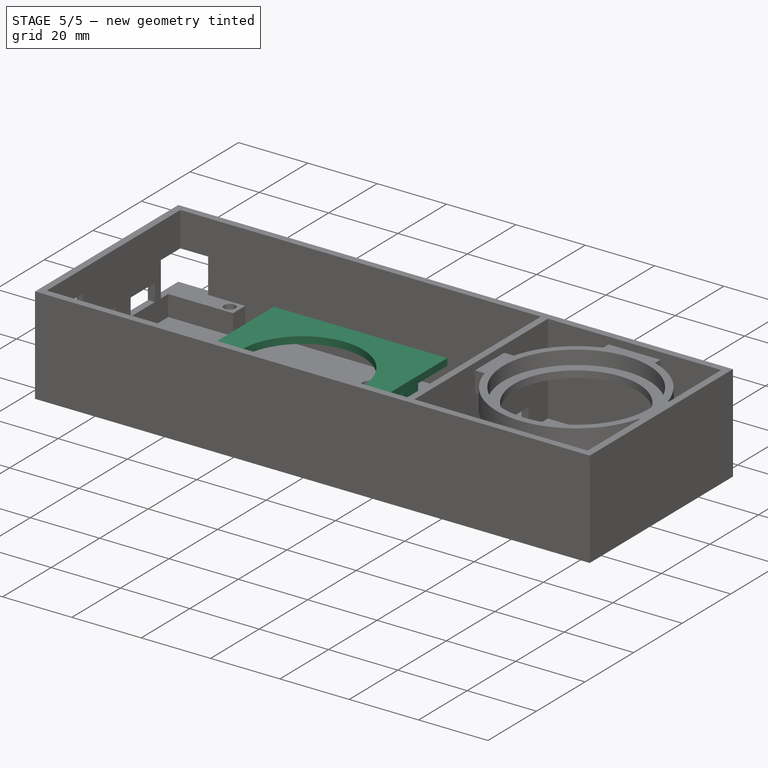
[diagram: stage 5 of 5 — iso view after this stage's code; geometry added in this stage tinted green]
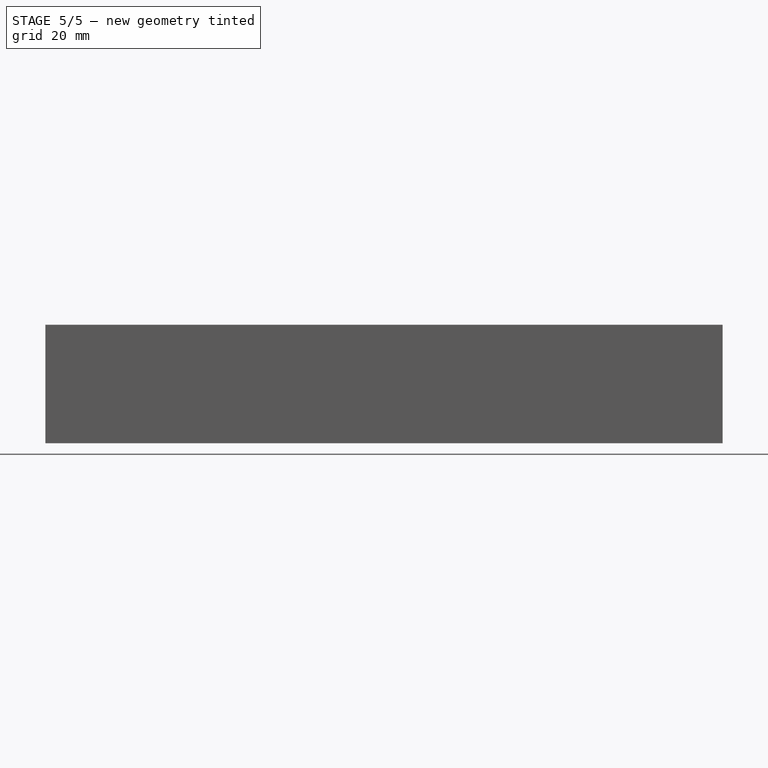
[diagram: stage 5 of 5 — front view after this stage's code; geometry added in this stage tinted green]
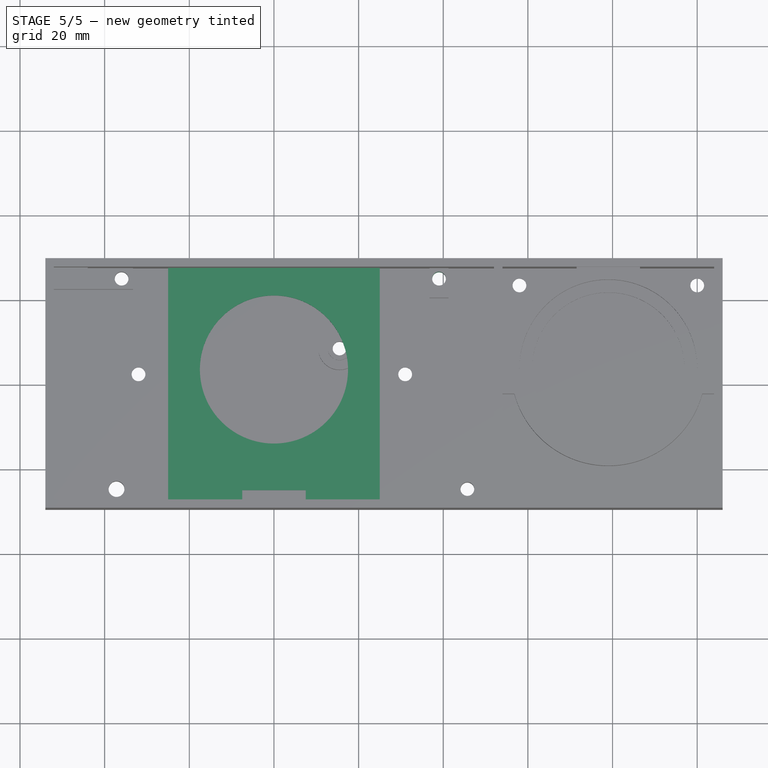
[diagram: stage 5 of 5 — top view after this stage's code; geometry added in this stage tinted green]
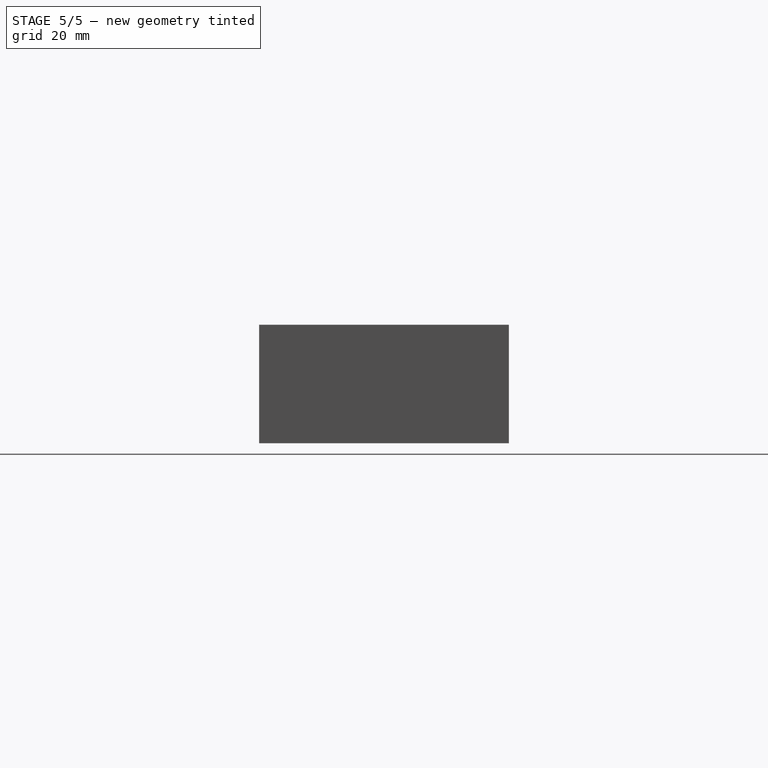
[diagram: stage 5 of 5 — right view after this stage's code; geometry added in this stage tinted green]
FEATURE [PartDesign::Line] DatumLine
  AttacherType = Attacher::AttachEngineLine
  Length = 20
  MapMode = 19
  Placement = pos=(79,3.5,14) rot=(0,0,1;0rad)
  ResizeMode = 0
  Support = -> [Pad006]
FEATURE [Sketcher::SketchObject] Sketch014
  ExternalGeometry = -> [Pad006]
  FullyConstrained = true
  MapMode = 5
  sketch-geometry (2):
    g0: Circle CenterX=45.7 CenterY=-24.7 CenterZ=0 NormalX=0 NormalY=0 NormalZ=1 AngleXU=0 Radius=1.625
    g1: Circle CenterX=-36 CenterY=25 CenterZ=0 NormalX=0 NormalY=0 NormalZ=1 AngleXU=0 Radius=1.625
  constraints (6):
    c: Diameter(g0) = 3.25
    c: Diameter(g1) = 3.25
    c: DistanceX(g0,g-4) = 6.3
    c: DistanceY(g-4,g0) = 2.8
    c: DistanceX(g-5,g1) = 16
    c: DistanceY(g1,g-5) = 2.5
FEATURE [Sketcher::SketchObject] Sketch017
  FullyConstrained = true
  MapMode = 5
  Support = -> [XY_Plane001]
  sketch-geometry (5):
    g0: LineSegment StartX=-25 StartY=27.5 StartZ=0 EndX=25 EndY=27.5 EndZ=0
    g1: LineSegment StartX=25 StartY=27.5 StartZ=0 EndX=25 EndY=-27.5 EndZ=0
    g2: LineSegment StartX=25 StartY=-27.5 StartZ=0 EndX=-25 EndY=-27.5 EndZ=0
    g3: LineSegment StartX=-25 StartY=-27.5 StartZ=0 EndX=-25 EndY=27.5 EndZ=0
    g4: Circle CenterX=0 CenterY=3.5 CenterZ=0 NormalX=0 NormalY=0 NormalZ=1 AngleXU=0 Radius=17.5
  constraints (13):
    c: Coincident(g0,g1)
    c: Coincident(g1,g2)
    c: Coincident(g2,g3)
    c: Coincident(g3,g0)
    c: Horizontal(g2)
    c: Vertical(g1)
    c: Symmetric(g0,g0,g-2)
    c: Symmetric(g0,g2,g-1)
    c: DistanceX(g0,g0) = 50
    c: DistanceY(g1,g1) = 55
    c: PointOnObject(g4,g-2)
    c: Diameter(g4) = 35
    c: DistanceY(g4,g0) = 24
FEATURE [PartDesign::Pad] Pad008
  Direction = (1,1,1)
  Length = 2
  Length2 = 100
  Profile = -> Sketch017
  Type = 0
FEATURE [Sketcher::SketchObject] Sketch018
  ExternalGeometry = -> [Pad008]
  FullyConstrained = true
  MapMode = 5
  Placement = pos=(0,0,0) rot=(1,0,0;3.14159rad)
  Support = -> [Pad008]
  sketch-geometry (14):
    g0: LineSegment StartX=7.5 StartY=-27.5 StartZ=0 EndX=7.5 EndY=-25.5 EndZ=0
    g1: LineSegment StartX=7.5 StartY=-25.5 StartZ=0 EndX=15 EndY=-25.5 EndZ=0
    g2: LineSegment StartX=15 StartY=-25.5 StartZ=0 EndX=15 EndY=-27.5 EndZ=0
    g3: LineSegment StartX=15 StartY=-27.5 StartZ=0 EndX=7.5 EndY=-27.5 EndZ=0
    g4: LineSegment StartX=0 StartY=-27.5 StartZ=0 EndX=0 EndY=-3.5 EndZ=0
    g5: LineSegment StartX=0 StartY=-3.5 StartZ=0 EndX=25 EndY=-3.5 EndZ=0
    g6: LineSegment StartX=25 StartY=-9.5 StartZ=0 EndX=23 EndY=-9.5 EndZ=0
    g7: LineSegment StartX=23 StartY=-9.5 StartZ=0 EndX=23 EndY=-15.5 EndZ=0
    g8: LineSegment StartX=23 StartY=-15.5 StartZ=0 EndX=25 EndY=-15.5 EndZ=0
    g9: LineSegment StartX=25 StartY=-9.5 StartZ=0 EndX=25 EndY=-15.5 EndZ=0
    g10: LineSegment StartX=25 StartY=2.5 StartZ=0 EndX=23 EndY=2.5 EndZ=0
    g11: LineSegment StartX=23 StartY=2.5 StartZ=0 EndX=23 EndY=8.5 EndZ=0
    g12: LineSegment StartX=23 StartY=8.5 StartZ=0 EndX=25 EndY=8.5 EndZ=0
    g13: LineSegment StartX=25 StartY=8.5 StartZ=0 EndX=25 EndY=2.5 EndZ=0
  constraints (40):
    c: PointOnObject(g0,g-3)
    c: Vertical(g0)
    c: Coincident(g0,g1)
    c: Horizontal(g1)
    c: Coincident(g1,g2)
    c: PointOnObject(g2,g-3)
    c: Vertical(g2)
    c: Coincident(g2,g3)
    c: Coincident(g3,g0)
    c: DistanceY(g2,g2) = 2
    c: PointOnObject(g4,g-3)
    c: Vertical(g4)
    c: DistanceX(g4,g0) = 7.5
    c: DistanceX(g4,g2) = 15
    c: Coincident(g5,g-6)
    c: PointOnObject(g5,g-4)
    c: Horizontal(g5)
    c: PointOnObject(g6,g-4)
    c: Horizontal(g6)
    c: Coincident(g6,g7)
    c: Vertical(g7)
    c: Coincident(g7,g8)
    c: PointOnObject(g8,g-4)
    c: Horizontal(g8)
    c: Coincident(g9,g6)
    c: Coincident(g9,g8)
    c: PointOnObject(g10,g-4)
    c: Horizontal(g10)
    c: Coincident(g10,g11)
    c: Coincident(g11,g12)
    c: PointOnObject(g12,g-4)
    c: Horizontal(g12)
    c: Coincident(g12,g13)
    c: Coincident(g13,g10)
    c: Symmetric(g10,g6,g5)
    c: Symmetric(g11,g7,g5)
    c: DistanceX(g12,g12) = 2
    c: DistanceY(g7,g11) = 24
    c: DistanceY(g6,g10) = 12
    c: Coincident(g4,g5)
FEATURE [PartDesign::Pad] Pad009
  BaseFeature = -> Pad008
  Direction = (1,1,1)
  Length = 2.5
  Length2 = 100
  Profile = -> Sketch018
  Type = 0
FEATURE [PartDesign::Mirrored] Mirrored
  BaseFeature = -> Pad009
  MirrorPlane = -> YZ_Plane001
  Originals = -> [Pad009]
FEATURE [Sketcher::SketchObject] Sketch019
  ExternalGeometry = -> [Mirrored]
  FullyConstrained = true
  MapMode = 5
  Placement = pos=(0,0,2) rot=(0,0,1;0rad)
  Support = -> [Mirrored]
  sketch-geometry (4):
    g0: LineSegment StartX=-7.5 StartY=-27.5 StartZ=0 EndX=7.5 EndY=-27.5 EndZ=0
    g1: LineSegment StartX=7.5 StartY=-27.5 StartZ=0 EndX=7.5 EndY=-25 EndZ=0
    g2: LineSegment StartX=7.5 StartY=-25 StartZ=0 EndX=-7.5 EndY=-25 EndZ=0
    g3: LineSegment StartX=-7.5 StartY=-25 StartZ=0 EndX=-7.5 EndY=-27.5 EndZ=0
  constraints (11):
    c: Coincident(g0,g1)
    c: Coincident(g1,g2)
    c: Coincident(g2,g3)
    c: Coincident(g3,g0)
    c: Horizontal(g0)
    c: Vertical(g1)
    c: Vertical(g3)
    c: PointOnObject(g0,g-3)
    c: Symmetric(g2,g1,g-2)
    c: DistanceX(g2,g1) = 15
    c: DistanceY(g0,g1) = 2.5
FEATURE [PartDesign::Pocket] Pocket006
  BaseFeature = -> Mirrored
  Length = 0
  Length2 = 100
  Profile = -> Sketch019
  Type = 3
  UpToFace = -> Mirrored [Face4]
FEATURE [Sketcher::SketchObject] Sketch033
  ExternalGeometry = -> [Pocket014]
  FullyConstrained = true
  MapMode = 5
  Support = -> [Pocket014]
  sketch-geometry (1):
    g0: Circle CenterX=39 CenterY=25 CenterZ=0 NormalX=0 NormalY=0 NormalZ=1 AngleXU=0 Radius=1.625
  constraints (3):
    c: Horizontal(g-3,g0)
    c: Equal(g0,g-3)
    c: DistanceX(g-3,g0) = 75
FEATURE [PartDesign::Pocket] Pocket015
  BaseFeature = -> Pocket014
  Length = 0
  Length2 = 100
  Profile = -> Sketch033
  Type = 3
  UpToFace = -> Pocket014 [Face22]
FEATURE [PartDesign::Body] Body  label="Holder"
  Group = -> [Sketch,Pad,Sketch001,Pad001,Sketch002,Pad002,Sketch004,Pad003,Sketch005,Pad004,DatumPlane,Sketch010,Pad005,Sketch011,Pad006,DatumLine,Sketch014,Pocket007,Sketch022,Sketch023,Pocket,Pocket008,Sketch024,Pad010,Sketch025,Pocket009,Sketch026,Pocket010,Sketch027,Pad011,Sketch028,Pocket011,Sketch029,Pocket012,Sketch030,Pocket013,Sketch031,Pad012,Sketch032,Pocket014,Sketch033,Pocket015]
  Origin = -> Origin
  Tip = -> Pocket015
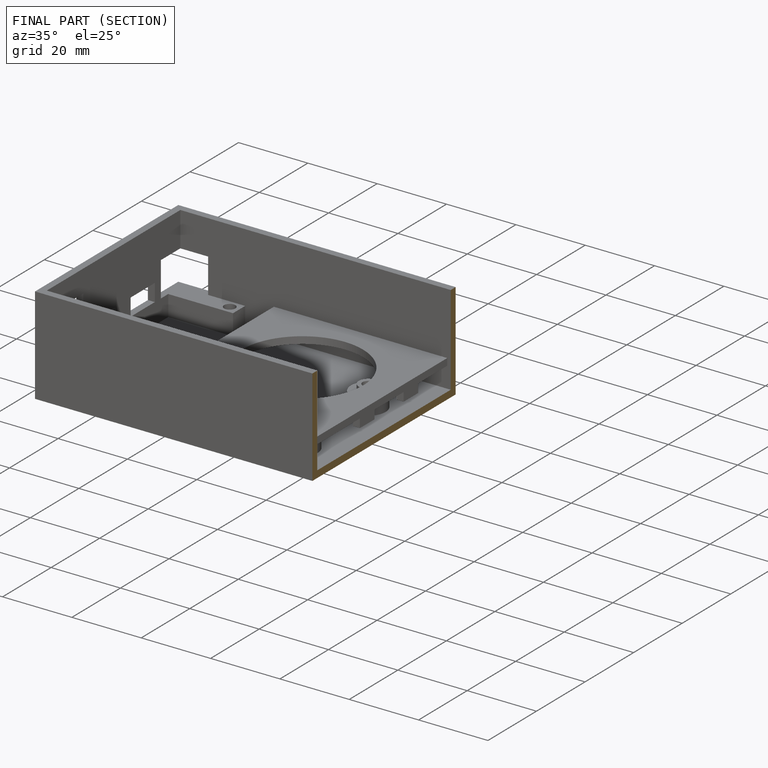
[diagram: finished part — half-section view (interior)]
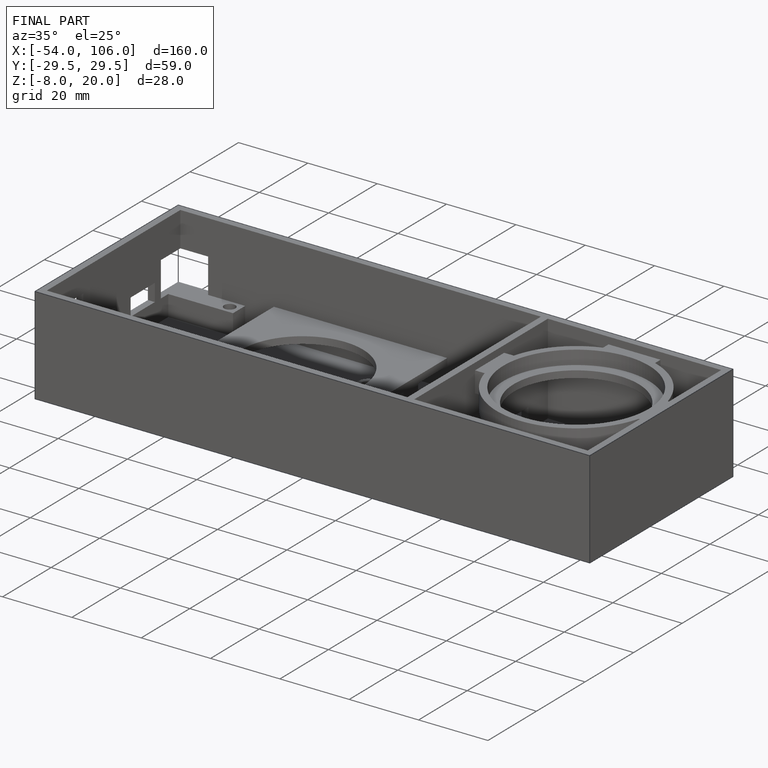
[diagram: finished part — iso view with bounding-box wireframe]
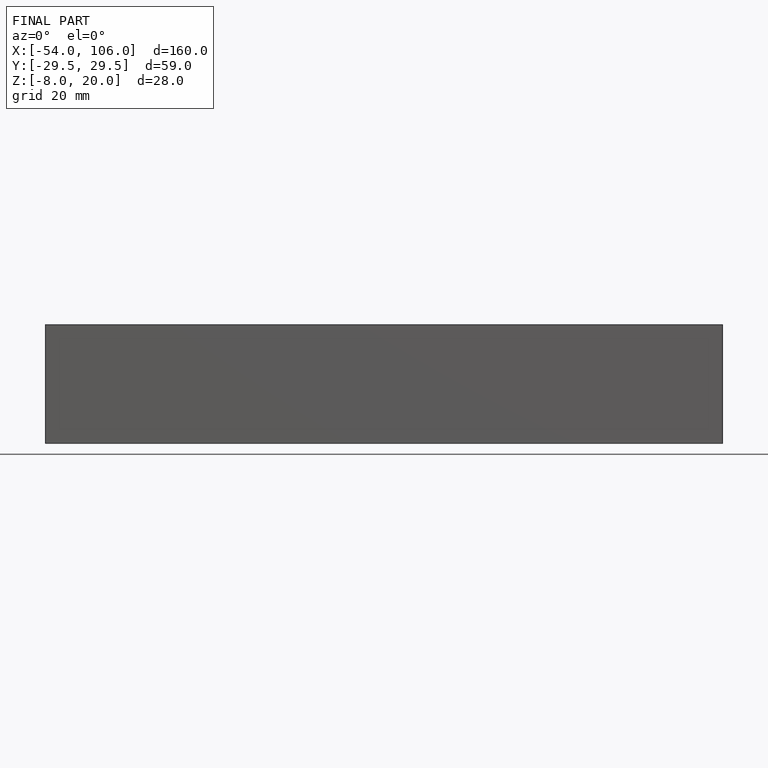
[diagram: finished part — front view with bounding-box wireframe]
